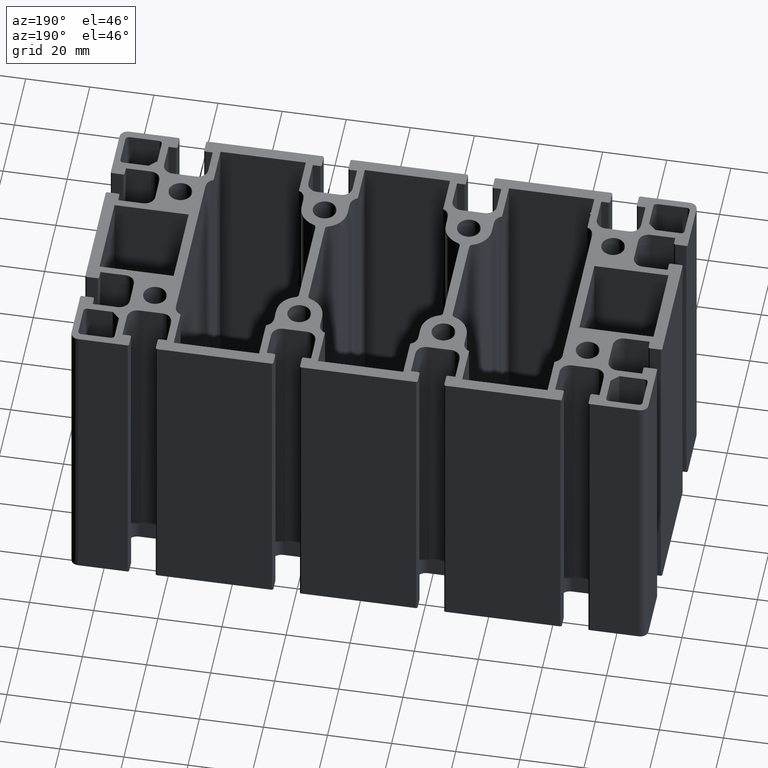
[diagram: clean part render]
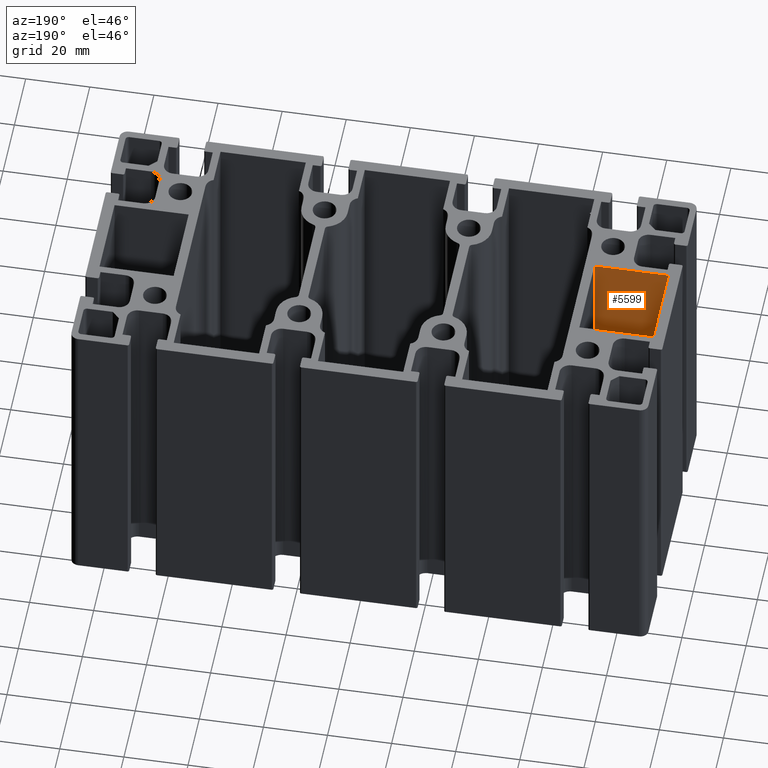
[diagram: same view with one face highlighted and labeled with its STEP entity id]
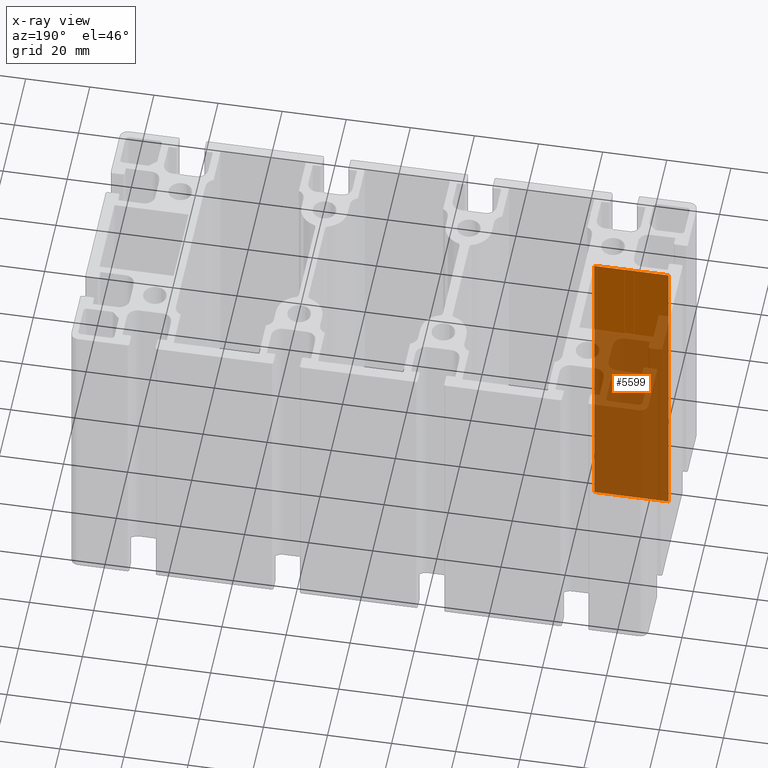
[diagram: x-ray of the same camera — body ghosted, the highlighted face saturated]
A machine part, auxiliary view. The second image highlights one B-rep face of the part: STEP entity #5599.
The next image is the same camera in x-ray: the body ghosted, the highlighted face saturated — about 74% of this face is hidden behind the body in this view.
In plain terms, the highlighted planar face has unit normal (0, -1, 0).
Its self-contained STEP definition (entity closure, byte-faithful):
#496=FACE_OUTER_BOUND('',#784,.T.);
#784=EDGE_LOOP('',(#3928,#3929,#3930,#3931));
#1184=LINE('',#8428,#1784);
#1185=LINE('',#8431,#1785);
#1186=LINE('',#8433,#1786);
#1187=LINE('',#8434,#1787);
#1784=VECTOR('',#6743,100.);
#1785=VECTOR('',#6746,23.1000000000027);
#1786=VECTOR('',#6747,23.1000000000027);
#1787=VECTOR('',#6748,100.);
#2378=VERTEX_POINT('',#8424);
#2379=VERTEX_POINT('',#8426);
#2380=VERTEX_POINT('',#8430);
#2381=VERTEX_POINT('',#8432);
#3014=EDGE_CURVE('',#2378,#2379,#1184,.T.);
#3015=EDGE_CURVE('',#2378,#2380,#1185,.T.);
#3016=EDGE_CURVE('',#2381,#2379,#1186,.T.);
#3017=EDGE_CURVE('',#2381,#2380,#1187,.T.);
#3928=ORIENTED_EDGE('',*,*,#3015,.F.);
#3929=ORIENTED_EDGE('',*,*,#3014,.T.);
#3930=ORIENTED_EDGE('',*,*,#3016,.F.);
#3931=ORIENTED_EDGE('',*,*,#3017,.T.);
#5407=PLANE('',#5947);
#5599=ADVANCED_FACE('',(#496),#5407,.F.);
#5947=AXIS2_PLACEMENT_3D('',#8429,#6744,#6745);
#6743=DIRECTION('',(0.,0.,-1.));
#6744=DIRECTION('center_axis',(1.92246411190481E-16,-1.,0.));
#6745=DIRECTION('ref_axis',(1.,1.77635683940025E-16,0.));
#6746=DIRECTION('',(-1.,-1.92246411190481E-16,0.));
#6747=DIRECTION('',(1.,1.92246411190481E-16,0.));
#6748=DIRECTION('',(0.,0.,1.));
#8424=CARTESIAN_POINT('',(-63.2999999999973,-13.2999999999973,100.));
#8426=CARTESIAN_POINT('',(-63.2999999999973,-13.2999999999973,0.));
#8428=CARTESIAN_POINT('',(-63.2999999999973,-13.2999999999973,0.));
#8429=CARTESIAN_POINT('Origin',(-86.4,-13.2999999999973,0.));
#8430=CARTESIAN_POINT('',(-86.4,-13.2999999999973,100.));
#8431=CARTESIAN_POINT('',(-43.2,-13.2999999999973,100.));
#8432=CARTESIAN_POINT('',(-86.4,-13.2999999999973,0.));
#8433=CARTESIAN_POINT('',(-43.2,-13.2999999999973,0.));
#8434=CARTESIAN_POINT('',(-86.4,-13.2999999999973,0.));